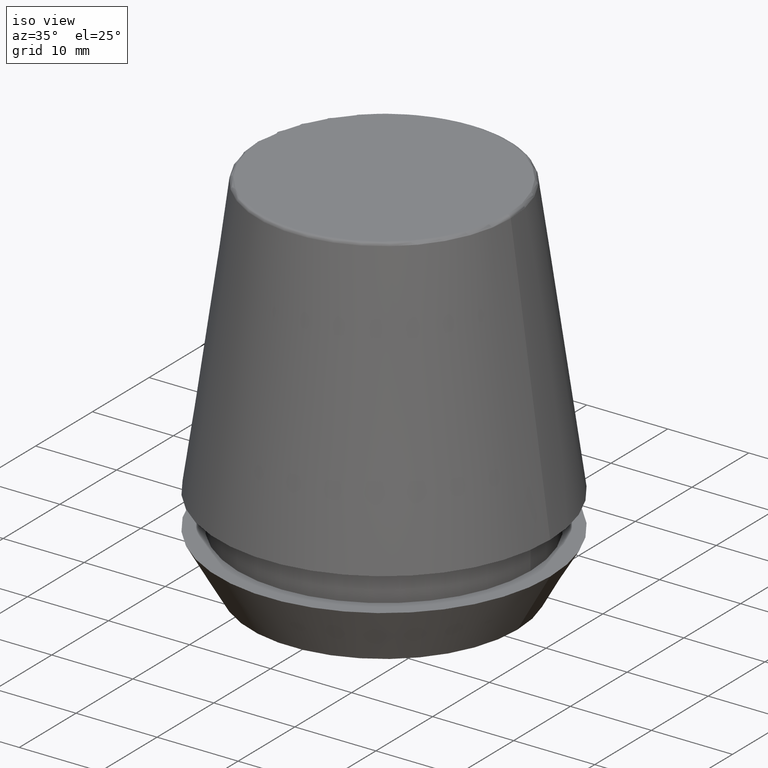
[diagram: clean part render]
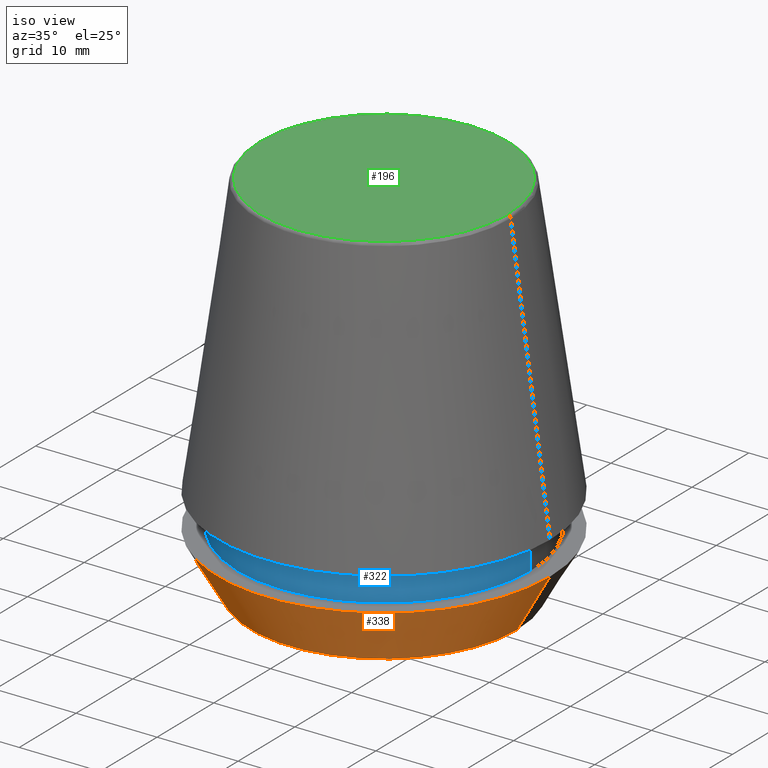
[diagram: same view with three faces highlighted in distinct colors, each labeled with its STEP entity id]
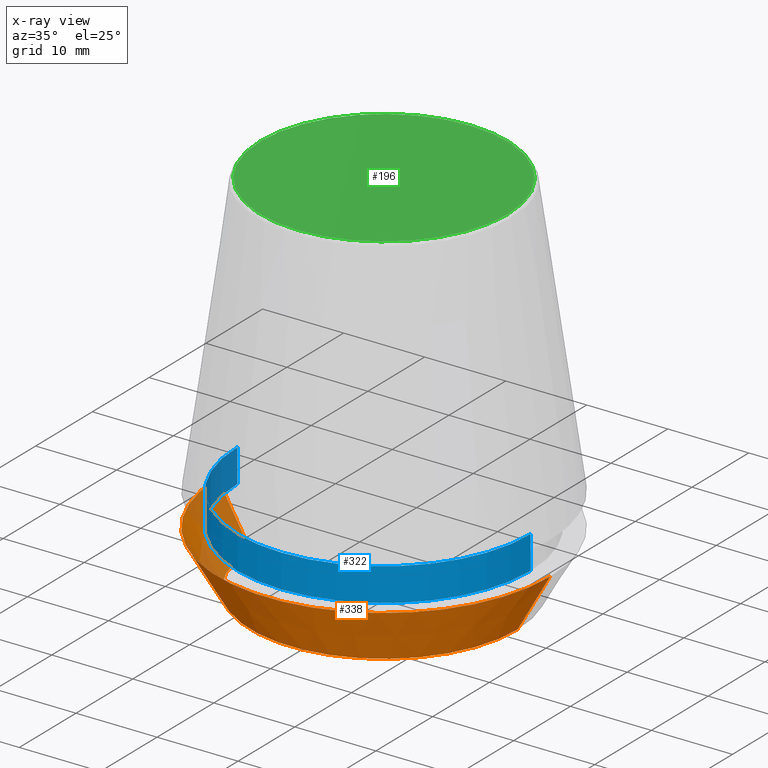
[diagram: x-ray of the same camera — body ghosted, the three highlighted faces saturated]
A machine part, iso view with three faces highlighted in distinct colors.
The next image is the same camera in x-ray (body ghosted, the three faces saturated) — at least one of them is partly hidden behind the body in this view.
Their STEP definitions:

[orange] entity #338 — the highlighted conical surface has half-angle 30 deg.
#21 = EDGE_CURVE ( 'NONE', #239, #330, #156, .T. ) ;
#33 = DIRECTION ( 'NONE',  ( 1.000000000000000000, 0.0000000000000000000, 0.0000000000000000000 ) ) ;
#35 = VERTEX_POINT ( 'NONE', #317 ) ;
#44 = CARTESIAN_POINT ( 'NONE',  ( 16.45854811567268100, 0.0000000000000000000, 0.0000000000000000000 ) ) ;
#45 = VECTOR ( 'NONE', #299, 1000.000000000000000 ) ;
#47 = DIRECTION ( 'NONE',  ( 1.000000000000000000, 0.0000000000000000000, 0.0000000000000000000 ) ) ;
#59 = CARTESIAN_POINT ( 'NONE',  ( 0.0000000000000000000, 0.0000000000000000000, 7.000000000000006200 ) ) ;
#62 = CIRCLE ( 'NONE', #221, 16.45854811567268100 ) ;
#63 = AXIS2_PLACEMENT_3D ( 'NONE', #59, #248, #33 ) ;
#73 = DIRECTION ( 'NONE',  ( -0.0000000000000000000, -0.0000000000000000000, 1.000000000000000000 ) ) ;
#103 = EDGE_CURVE ( 'NONE', #35, #330, #351, .T. ) ;
#105 = CARTESIAN_POINT ( 'NONE',  ( -16.45854811567268100, 2.015590826847124800E-015, 0.0000000000000000000 ) ) ;
#109 = CARTESIAN_POINT ( 'NONE',  ( 20.50000000000000000, 0.0000000000000000000, 7.000000000000006200 ) ) ;
#121 = DIRECTION ( 'NONE',  ( 0.4999999999999941700, 0.0000000000000000000, 0.8660254037844420400 ) ) ;
#132 = LINE ( 'NONE', #105, #45 ) ;
#151 = ORIENTED_EDGE ( 'NONE', *, *, #355, .T. ) ;
#156 = LINE ( 'NONE', #343, #250 ) ;
#173 = CARTESIAN_POINT ( 'NONE',  ( -16.45854811567268100, 2.263058382549599700E-015, 0.0000000000000000000 ) ) ;
#214 = VERTEX_POINT ( 'NONE', #173 ) ;
#216 = ORIENTED_EDGE ( 'NONE', *, *, #103, .F. ) ;
#217 = FACE_OUTER_BOUND ( 'NONE', #226, .T. ) ;
#221 = AXIS2_PLACEMENT_3D ( 'NONE', #235, #356, #307 ) ;
#226 = EDGE_LOOP ( 'NONE', ( #249, #151, #359, #216 ) ) ;
#235 = CARTESIAN_POINT ( 'NONE',  ( 0.0000000000000000000, 0.0000000000000000000, 0.0000000000000000000 ) ) ;
#239 = VERTEX_POINT ( 'NONE', #44 ) ;
#248 = DIRECTION ( 'NONE',  ( -0.0000000000000000000, -0.0000000000000000000, 1.000000000000000000 ) ) ;
#249 = ORIENTED_EDGE ( 'NONE', *, *, #329, .F. ) ;
#250 = VECTOR ( 'NONE', #121, 1000.000000000000000 ) ;
#254 = CONICAL_SURFACE ( 'NONE', #289, 16.45854811567268100, 0.5235987755982921500 ) ;
#289 = AXIS2_PLACEMENT_3D ( 'NONE', #301, #73, #47 ) ;
#299 = DIRECTION ( 'NONE',  ( -0.4999999999999941700, 6.123233995736694500E-017, 0.8660254037844420400 ) ) ;
#301 = CARTESIAN_POINT ( 'NONE',  ( 0.0000000000000000000, 0.0000000000000000000, 0.0000000000000000000 ) ) ;
#307 = DIRECTION ( 'NONE',  ( 1.000000000000000000, 0.0000000000000000000, 0.0000000000000000000 ) ) ;
#317 = CARTESIAN_POINT ( 'NONE',  ( -20.50000000000000000, 2.510525938252074100E-015, 7.000000000000006200 ) ) ;
#329 = EDGE_CURVE ( 'NONE', #214, #35, #132, .T. ) ;
#330 = VERTEX_POINT ( 'NONE', #109 ) ;
#338 = ADVANCED_FACE ( 'NONE', ( #217 ), #254, .T. ) ;
#343 = CARTESIAN_POINT ( 'NONE',  ( 16.45854811567268100, 0.0000000000000000000, 0.0000000000000000000 ) ) ;
#351 = CIRCLE ( 'NONE', #63, 20.50000000000000000 ) ;
#355 = EDGE_CURVE ( 'NONE', #214, #239, #62, .T. ) ;
#356 = DIRECTION ( 'NONE',  ( -0.0000000000000000000, -0.0000000000000000000, 1.000000000000000000 ) ) ;
#359 = ORIENTED_EDGE ( 'NONE', *, *, #21, .T. ) ;

[blue] entity #322 — the highlighted cylindrical surface (partial cylindrical patch) has radius 18.1 mm, axis along (-0, -0, 1).
#1 = ORIENTED_EDGE ( 'NONE', *, *, #286, .T. ) ;
#6 = CARTESIAN_POINT ( 'NONE',  ( -18.10000000000000500, 2.216610706456710000E-015, 11.09999999999999800 ) ) ;
#7 = CIRCLE ( 'NONE', #67, 18.10000000000000500 ) ;
#10 = ORIENTED_EDGE ( 'NONE', *, *, #141, .F. ) ;
#51 = VERTEX_POINT ( 'NONE', #6 ) ;
#54 = ORIENTED_EDGE ( 'NONE', *, *, #108, .T. ) ;
#60 = CIRCLE ( 'NONE', #236, 18.10000000000000100 ) ;
#67 = AXIS2_PLACEMENT_3D ( 'NONE', #337, #119, #315 ) ;
#89 = CARTESIAN_POINT ( 'NONE',  ( 18.10000000000000100, 0.0000000000000000000, 6.999999999999999100 ) ) ;
#91 = EDGE_CURVE ( 'NONE', #51, #175, #7, .T. ) ;
#101 = LINE ( 'NONE', #285, #284 ) ;
#108 = EDGE_CURVE ( 'NONE', #176, #175, #101, .T. ) ;
#119 = DIRECTION ( 'NONE',  ( -0.0000000000000000000, -0.0000000000000000000, 1.000000000000000000 ) ) ;
#126 = CYLINDRICAL_SURFACE ( 'NONE', #296, 18.10000000000000500 ) ;
#128 = CARTESIAN_POINT ( 'NONE',  ( 0.0000000000000000000, 0.0000000000000000000, 6.999999999999999100 ) ) ;
#134 = CARTESIAN_POINT ( 'NONE',  ( 0.0000000000000000000, 0.0000000000000000000, 46.00000000000000000 ) ) ;
#141 = EDGE_CURVE ( 'NONE', #202, #51, #187, .T. ) ;
#153 = FACE_OUTER_BOUND ( 'NONE', #247, .T. ) ;
#158 = DIRECTION ( 'NONE',  ( 1.000000000000000000, 0.0000000000000000000, 0.0000000000000000000 ) ) ;
#175 = VERTEX_POINT ( 'NONE', #335 ) ;
#176 = VERTEX_POINT ( 'NONE', #89 ) ;
#187 = LINE ( 'NONE', #365, #218 ) ;
#201 = DIRECTION ( 'NONE',  ( 1.000000000000000000, 0.0000000000000000000, 0.0000000000000000000 ) ) ;
#202 = VERTEX_POINT ( 'NONE', #331 ) ;
#208 = DIRECTION ( 'NONE',  ( -0.0000000000000000000, -0.0000000000000000000, 1.000000000000000000 ) ) ;
#218 = VECTOR ( 'NONE', #283, 1000.000000000000000 ) ;
#236 = AXIS2_PLACEMENT_3D ( 'NONE', #128, #353, #158 ) ;
#247 = EDGE_LOOP ( 'NONE', ( #10, #1, #54, #274 ) ) ;
#274 = ORIENTED_EDGE ( 'NONE', *, *, #91, .F. ) ;
#283 = DIRECTION ( 'NONE',  ( -0.0000000000000000000, -0.0000000000000000000, 1.000000000000000000 ) ) ;
#284 = VECTOR ( 'NONE', #208, 1000.000000000000000 ) ;
#285 = CARTESIAN_POINT ( 'NONE',  ( 18.10000000000000500, 0.0000000000000000000, 46.00000000000000000 ) ) ;
#286 = EDGE_CURVE ( 'NONE', #202, #176, #60, .T. ) ;
#296 = AXIS2_PLACEMENT_3D ( 'NONE', #134, #376, #201 ) ;
#315 = DIRECTION ( 'NONE',  ( 1.000000000000000000, 0.0000000000000000000, 0.0000000000000000000 ) ) ;
#322 = ADVANCED_FACE ( 'NONE', ( #153 ), #126, .T. ) ;
#331 = CARTESIAN_POINT ( 'NONE',  ( -18.10000000000000100, 2.216610706456709600E-015, 6.999999999999999100 ) ) ;
#335 = CARTESIAN_POINT ( 'NONE',  ( 18.10000000000000500, 0.0000000000000000000, 11.09999999999999800 ) ) ;
#337 = CARTESIAN_POINT ( 'NONE',  ( 0.0000000000000000000, 0.0000000000000000000, 11.09999999999999800 ) ) ;
#353 = DIRECTION ( 'NONE',  ( -0.0000000000000000000, -0.0000000000000000000, 1.000000000000000000 ) ) ;
#365 = CARTESIAN_POINT ( 'NONE',  ( -18.10000000000000500, 2.216610706456710000E-015, 46.00000000000000000 ) ) ;
#376 = DIRECTION ( 'NONE',  ( -0.0000000000000000000, -0.0000000000000000000, 1.000000000000000000 ) ) ;

[green] entity #196 — the highlighted planar face has unit normal (0, 0, -1).
#17 = ORIENTED_EDGE ( 'NONE', *, *, #122, .T. ) ;
#22 = VERTEX_POINT ( 'NONE', #147 ) ;
#53 = AXIS2_PLACEMENT_3D ( 'NONE', #336, #118, #312 ) ;
#65 = VERTEX_POINT ( 'NONE', #100 ) ;
#70 = AXIS2_PLACEMENT_3D ( 'NONE', #106, #381, #276 ) ;
#100 = CARTESIAN_POINT ( 'NONE',  ( -15.24773554530077600, 1.891563625393435400E-015, 46.00000000000000000 ) ) ;
#106 = CARTESIAN_POINT ( 'NONE',  ( 0.0000000000000000000, 0.0000000000000000000, 46.00000000000000000 ) ) ;
#118 = DIRECTION ( 'NONE',  ( -0.0000000000000000000, -0.0000000000000000000, 1.000000000000000000 ) ) ;
#122 = EDGE_CURVE ( 'NONE', #65, #22, #262, .T. ) ;
#138 = ORIENTED_EDGE ( 'NONE', *, *, #234, .T. ) ;
#147 = CARTESIAN_POINT ( 'NONE',  ( 15.24773554530077600, 0.0000000000000000000, 46.00000000000000000 ) ) ;
#177 = PLANE ( 'NONE',  #332 ) ;
#196 = ADVANCED_FACE ( 'NONE', ( #273 ), #177, .F. ) ;
#203 = DIRECTION ( 'NONE',  ( 0.0000000000000000000, 0.0000000000000000000, -1.000000000000000000 ) ) ;
#207 = CARTESIAN_POINT ( 'NONE',  ( 0.0000000000000000000, 15.24773554530077600, 46.00000000000000000 ) ) ;
#223 = EDGE_LOOP ( 'NONE', ( #138, #17 ) ) ;
#234 = EDGE_CURVE ( 'NONE', #22, #65, #383, .T. ) ;
#262 = CIRCLE ( 'NONE', #53, 15.24773554530077600 ) ;
#273 = FACE_OUTER_BOUND ( 'NONE', #223, .T. ) ;
#276 = DIRECTION ( 'NONE',  ( 1.000000000000000000, 0.0000000000000000000, 0.0000000000000000000 ) ) ;
#312 = DIRECTION ( 'NONE',  ( 1.000000000000000000, 0.0000000000000000000, 0.0000000000000000000 ) ) ;
#332 = AXIS2_PLACEMENT_3D ( 'NONE', #207, #203, #387 ) ;
#336 = CARTESIAN_POINT ( 'NONE',  ( 0.0000000000000000000, 0.0000000000000000000, 46.00000000000000000 ) ) ;
#381 = DIRECTION ( 'NONE',  ( -0.0000000000000000000, -0.0000000000000000000, 1.000000000000000000 ) ) ;
#383 = CIRCLE ( 'NONE', #70, 15.24773554530077600 ) ;
#387 = DIRECTION ( 'NONE',  ( -1.000000000000000000, 0.0000000000000000000, -0.0000000000000000000 ) ) ;